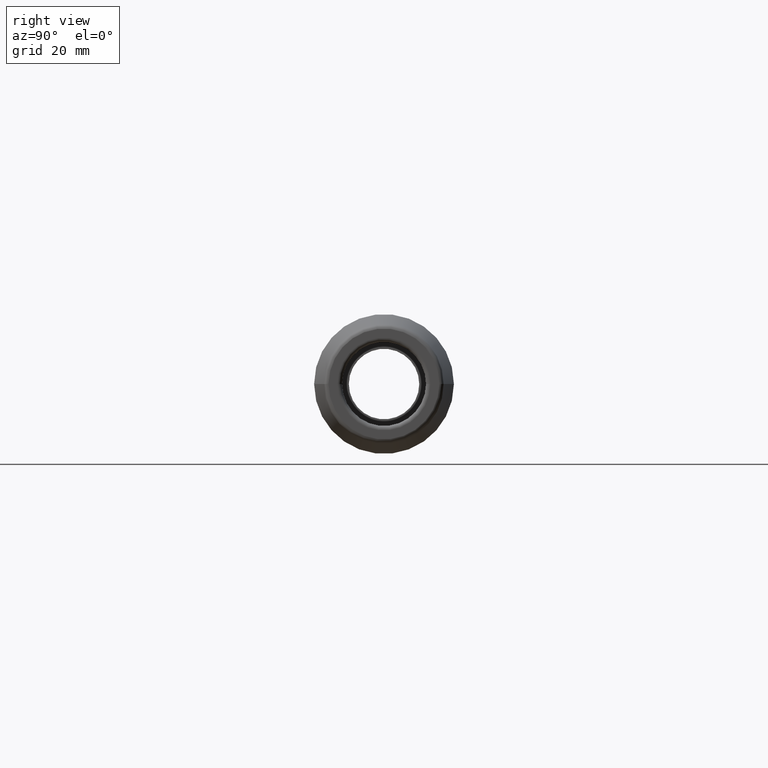
[diagram: clean part render]
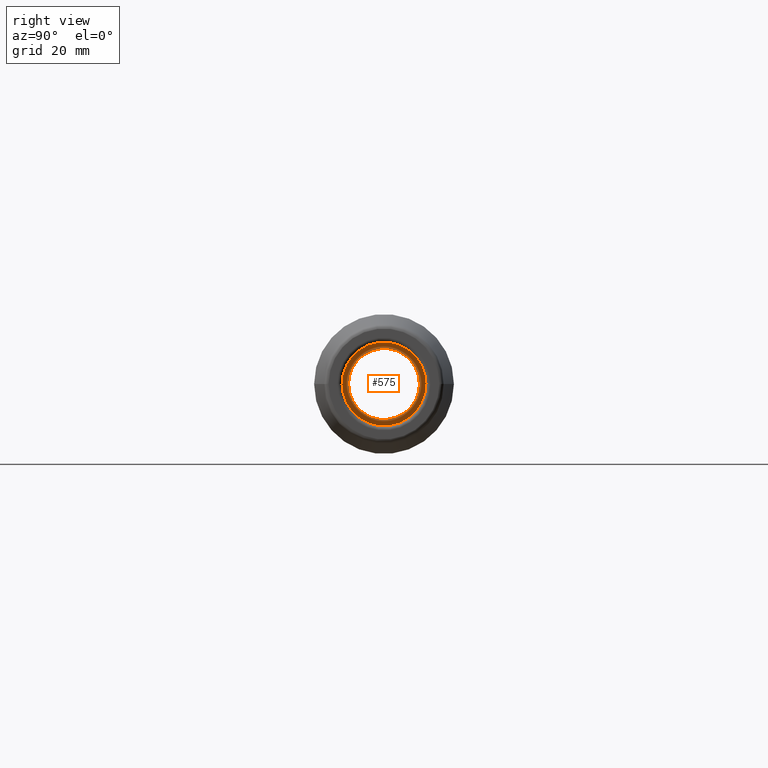
[diagram: same view with one face highlighted and labeled with its STEP entity id]
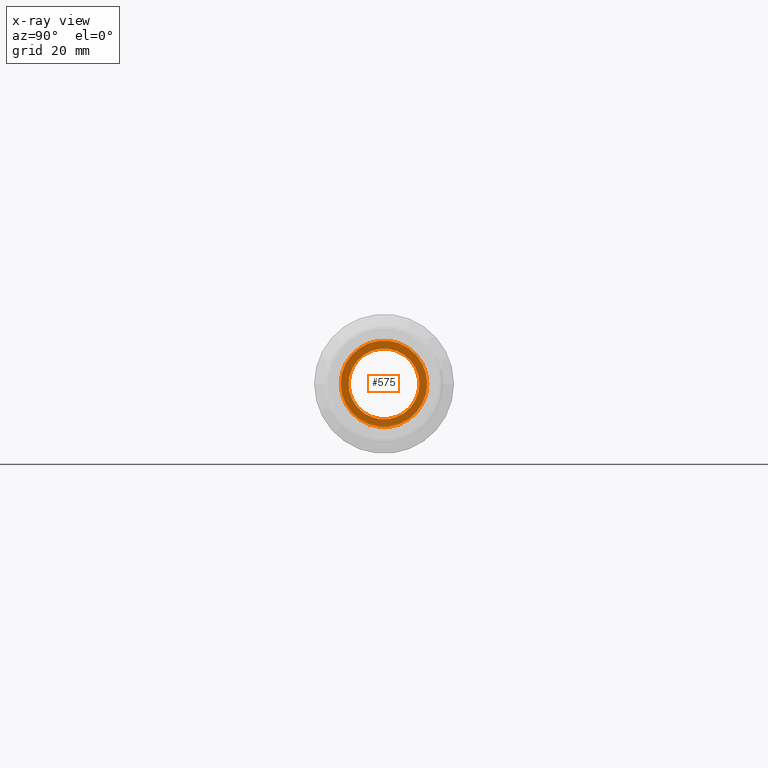
[diagram: x-ray of the same camera — body ghosted, the highlighted face saturated]
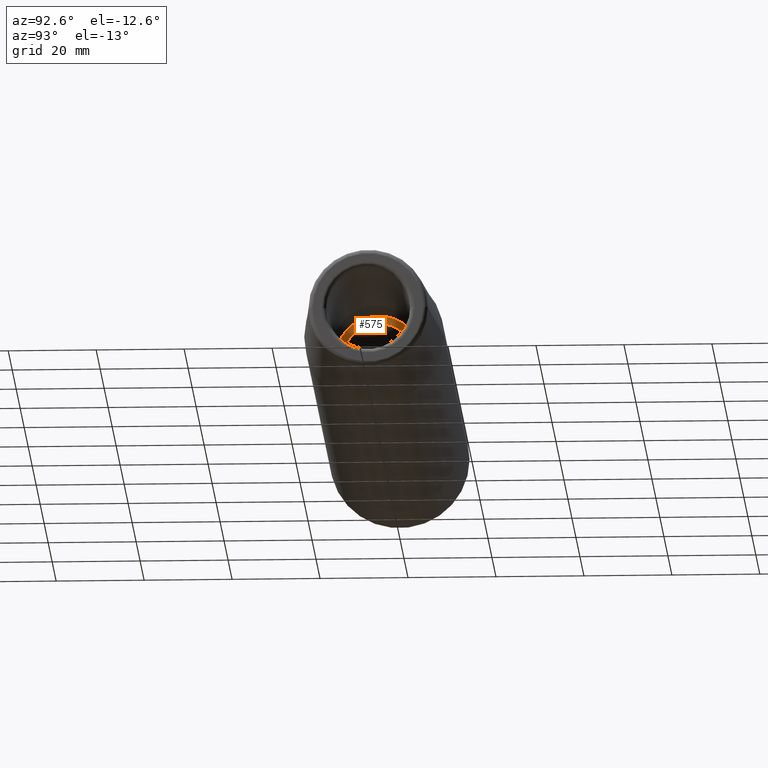
[diagram: same view with one face highlighted and labeled with its STEP entity id]
A machine part, right view. The second image highlights one B-rep face of the part: STEP entity #575.
The next image is the same camera in x-ray: the body ghosted, the highlighted face saturated — about 18% of this face is hidden behind the body in this view.
A second angle (auxiliary view) of the same face is appended — the face is thin or edge-on in the first view.
In plain terms, the highlighted planar face has unit normal (1, 0, 0).
Its self-contained STEP definition (entity closure, byte-faithful):
#122=CARTESIAN_POINT('',(1.07E2,0.E0,0.E0));
#123=DIRECTION('',(-1.E0,0.E0,0.E0));
#124=DIRECTION('',(0.E0,1.E0,0.E0));
#125=AXIS2_PLACEMENT_3D('',#122,#123,#124);
#127=CARTESIAN_POINT('',(1.07E2,0.E0,0.E0));
#128=DIRECTION('',(1.E0,0.E0,0.E0));
#129=DIRECTION('',(0.E0,1.E0,0.E0));
#130=AXIS2_PLACEMENT_3D('',#127,#128,#129);
#132=CARTESIAN_POINT('',(1.07E2,0.E0,0.E0));
#133=DIRECTION('',(1.E0,0.E0,0.E0));
#134=DIRECTION('',(0.E0,1.E0,0.E0));
#135=AXIS2_PLACEMENT_3D('',#132,#133,#134);
#145=CARTESIAN_POINT('',(1.07E2,0.E0,0.E0));
#146=DIRECTION('',(-1.E0,0.E0,0.E0));
#147=DIRECTION('',(0.E0,1.E0,0.E0));
#148=AXIS2_PLACEMENT_3D('',#145,#146,#147);
#316=CARTESIAN_POINT('',(1.07E2,8.05E0,0.E0));
#317=VERTEX_POINT('',#316);
#318=CARTESIAN_POINT('',(1.07E2,9.825E0,0.E0));
#320=VERTEX_POINT('',#318);
#352=CARTESIAN_POINT('',(1.07E2,-8.05E0,0.E0));
#353=VERTEX_POINT('',#352);
#354=CARTESIAN_POINT('',(1.07E2,-9.825E0,0.E0));
#356=VERTEX_POINT('',#354);
#560=CARTESIAN_POINT('',(1.07E2,0.E0,0.E0));
#561=DIRECTION('',(1.E0,0.E0,0.E0));
#562=DIRECTION('',(0.E0,-1.E0,0.E0));
#563=AXIS2_PLACEMENT_3D('',#560,#561,#562);
#564=PLANE('',#563);
#566=ORIENTED_EDGE('',*,*,#565,.F.);
#568=ORIENTED_EDGE('',*,*,#567,.T.);
#569=EDGE_LOOP('',(#566,#568));
#570=FACE_OUTER_BOUND('',#569,.F.);
#571=ORIENTED_EDGE('',*,*,#553,.F.);
#572=ORIENTED_EDGE('',*,*,#542,.T.);
#573=EDGE_LOOP('',(#571,#572));
#574=FACE_BOUND('',#573,.F.);
#575=ADVANCED_FACE('',(#570,#574),#564,.T.);
#126=CIRCLE('',#125,8.05E0);
#131=CIRCLE('',#130,8.05E0);
#136=CIRCLE('',#135,9.825E0);
#149=CIRCLE('',#148,9.825E0);
#542=EDGE_CURVE('',#317,#353,#131,.T.);
#553=EDGE_CURVE('',#317,#353,#126,.T.);
#565=EDGE_CURVE('',#320,#356,#136,.T.);
#567=EDGE_CURVE('',#320,#356,#149,.T.);